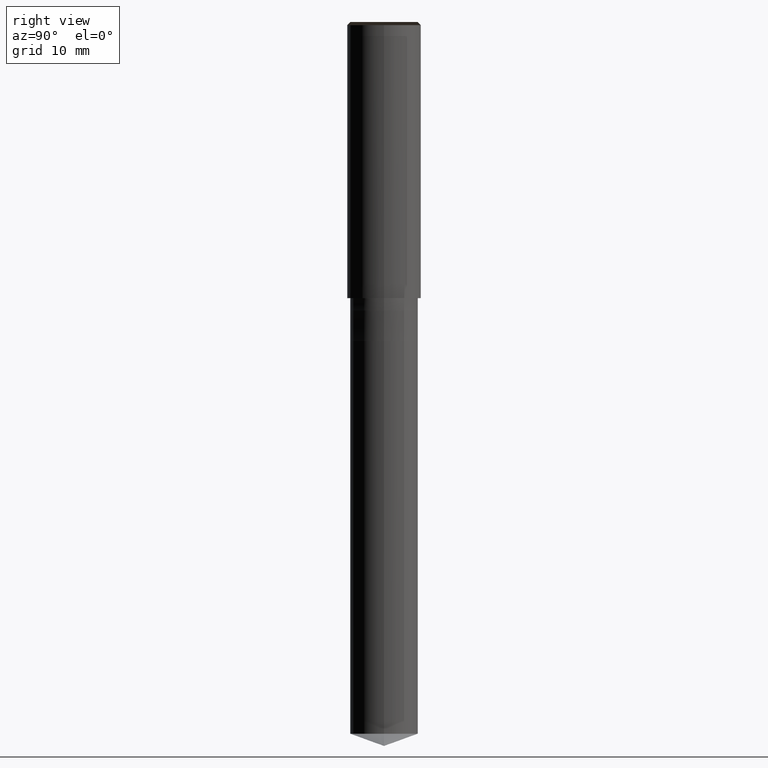
[diagram: clean part render]
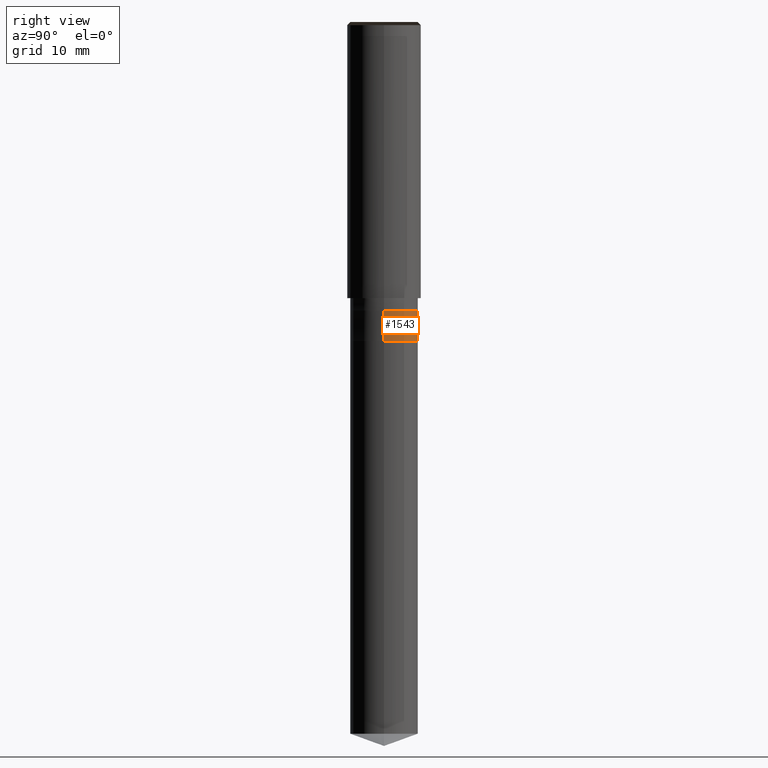
[diagram: same view with one face highlighted and labeled with its STEP entity id]
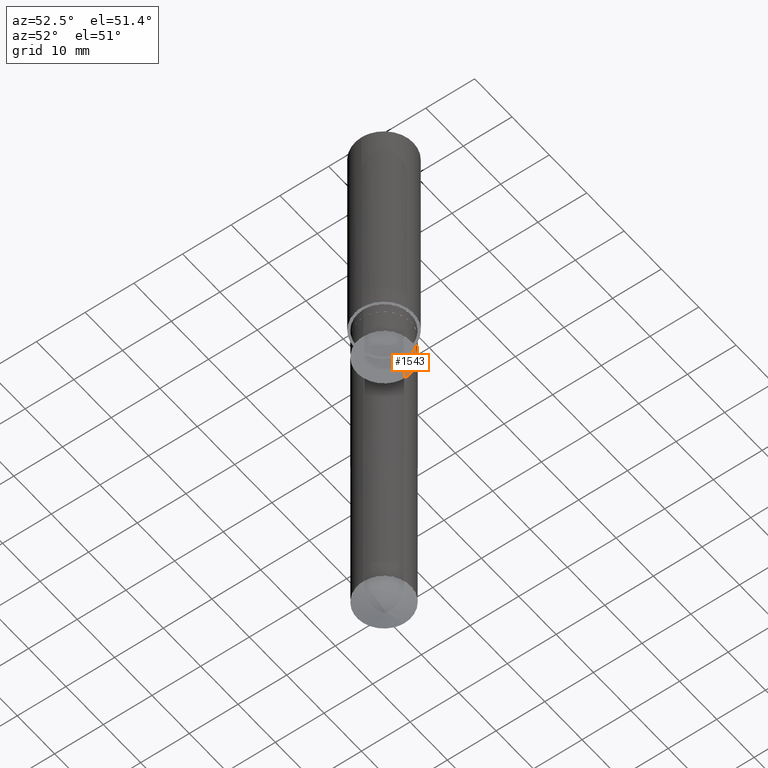
[diagram: same view with one face highlighted and labeled with its STEP entity id]
A machine part, right view. The second image highlights one B-rep face of the part: STEP entity #1543.
A second angle (auxiliary view) of the same face is appended — the face is thin or edge-on in the first view.
In plain terms, the highlighted face is a freeform B-spline surface patch.
Its self-contained STEP definition (entity closure, byte-faithful):
#1342=CARTESIAN_POINT('',(5.5,0.0,-7.0));
#1343=CARTESIAN_POINT('',(5.5,5.5,-7.0));
#1344=CARTESIAN_POINT('',(0.0,5.5,-7.0));
#1345=CARTESIAN_POINT('',(-5.5,5.5,-7.0));
#1346=CARTESIAN_POINT('',(-5.5,0.0,-7.0));
#1354=CARTESIAN_POINT('',(5.5,0.0,-2.0));
#1355=CARTESIAN_POINT('',(5.5,5.5,-2.0));
#1356=CARTESIAN_POINT('',(0.0,5.5,-2.0));
#1357=CARTESIAN_POINT('',(-5.5,5.5,-2.0));
#1358=CARTESIAN_POINT('',(-5.5,0.0,-2.0));
#1524=(
BOUNDED_SURFACE()
B_SPLINE_SURFACE(1,2,(
(#1342,#1343,#1344,#1345,#1346),
(#1354,#1355,#1356,#1357,#1358)
), .UNSPECIFIED.,.F.,.F.,.F.)
B_SPLINE_SURFACE_WITH_KNOTS((2,2),(3,2,3),(
0.0,1.0),(
0.0,0.5,1.0), .UNSPECIFIED.)
GEOMETRIC_REPRESENTATION_ITEM()
RATIONAL_B_SPLINE_SURFACE(((1.0,0.707106781187,1.0,0.707106781187,1.0),
(1.0,0.707106781187,1.0,0.707106781187,1.0)
))
REPRESENTATION_ITEM('')
SURFACE()
);
#1525=(
BOUNDED_CURVE()
B_SPLINE_CURVE(2,(#1346,#1345,#1344,#1343,#1342),.UNSPECIFIED.,.F.,.F.)
B_SPLINE_CURVE_WITH_KNOTS((3,2,3),
(0.0,0.5,1.0),.UNSPECIFIED.)
CURVE()
GEOMETRIC_REPRESENTATION_ITEM()
RATIONAL_B_SPLINE_CURVE((1.0,0.707106781187,1.0,0.707106781187,1.0))
REPRESENTATION_ITEM('')
);
#1526=(
BOUNDED_CURVE()
B_SPLINE_CURVE(1,(#1342,#1354),.UNSPECIFIED.,.F.,.F.)
B_SPLINE_CURVE_WITH_KNOTS((2,2),
(0.0,1.0),.UNSPECIFIED.)
CURVE()
GEOMETRIC_REPRESENTATION_ITEM()
RATIONAL_B_SPLINE_CURVE((1.0,1.0))
REPRESENTATION_ITEM('')
);
#1527=(
BOUNDED_CURVE()
B_SPLINE_CURVE(2,(#1354,#1355,#1356,#1357,#1358),.UNSPECIFIED.,.F.,.F.)
B_SPLINE_CURVE_WITH_KNOTS((3,2,3),
(0.0,0.5,1.0),.UNSPECIFIED.)
CURVE()
GEOMETRIC_REPRESENTATION_ITEM()
RATIONAL_B_SPLINE_CURVE((1.0,0.707106781187,1.0,0.707106781187,1.0))
REPRESENTATION_ITEM('')
);
#1528=(
BOUNDED_CURVE()
B_SPLINE_CURVE(1,(#1358,#1346),.UNSPECIFIED.,.F.,.F.)
B_SPLINE_CURVE_WITH_KNOTS((2,2),
(0.0,1.0),.UNSPECIFIED.)
CURVE()
GEOMETRIC_REPRESENTATION_ITEM()
RATIONAL_B_SPLINE_CURVE((1.0,1.0))
REPRESENTATION_ITEM('')
);
#1529=VERTEX_POINT('',#1342);
#1530=VERTEX_POINT('',#1346);
#1531=VERTEX_POINT('',#1354);
#1532=VERTEX_POINT('',#1358);
#1533=EDGE_CURVE('',#1530,#1529,#1525,.T.);
#1534=EDGE_CURVE('',#1529,#1531,#1526,.T.);
#1535=EDGE_CURVE('',#1531,#1532,#1527,.T.);
#1536=EDGE_CURVE('',#1532,#1530,#1528,.T.);
#1537=ORIENTED_EDGE('',*,*,#1533,.T.);
#1538=ORIENTED_EDGE('',*,*,#1534,.T.);
#1539=ORIENTED_EDGE('',*,*,#1535,.T.);
#1540=ORIENTED_EDGE('',*,*,#1536,.T.);
#1541=EDGE_LOOP('',(#1537,#1538,#1539,#1540));
#1542=FACE_OUTER_BOUND('',#1541,.T.);
#1543=ADVANCED_FACE('',(#1542),#1524,.T.);